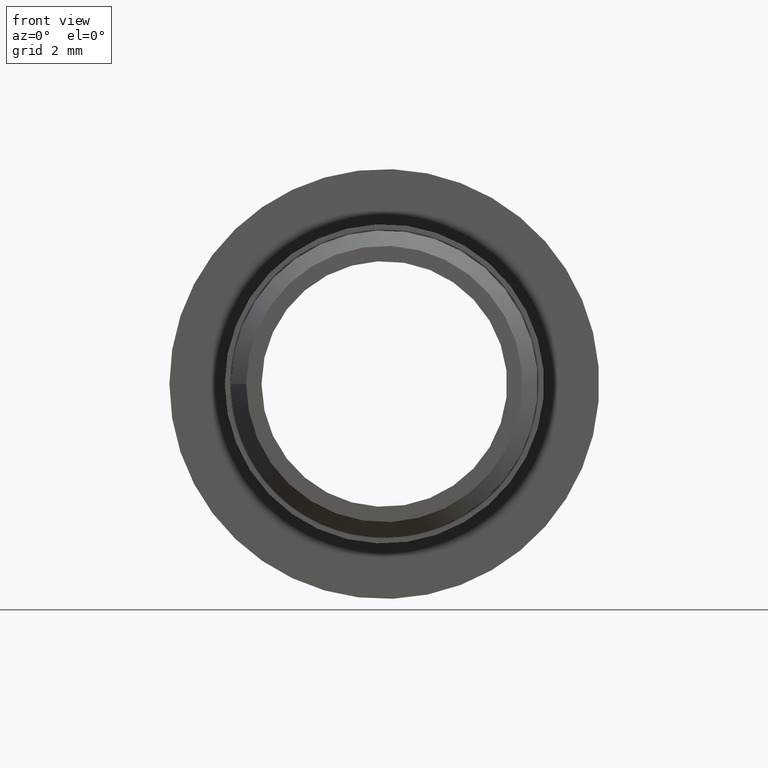
[diagram: clean part render]
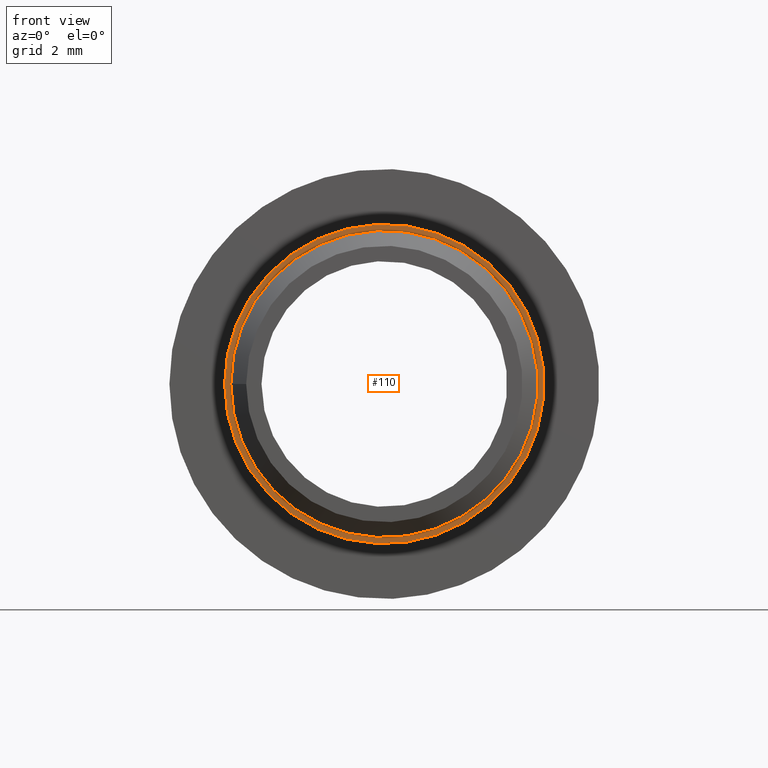
[diagram: same view with one face highlighted and labeled with its STEP entity id]
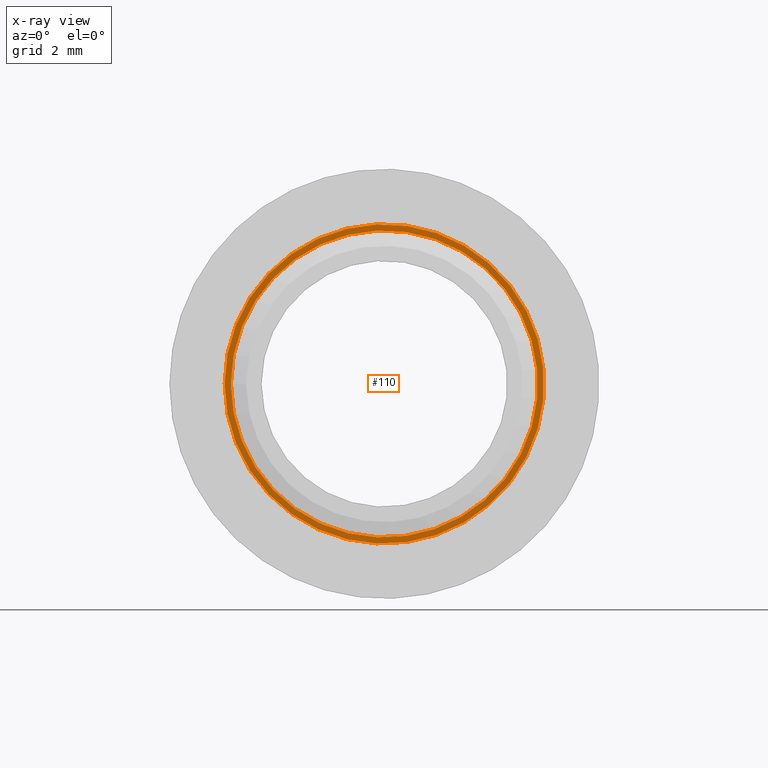
[diagram: x-ray of the same camera — body ghosted, the highlighted face saturated]
A machine part, front view. The second image highlights one B-rep face of the part: STEP entity #110.
The next image is the same camera in x-ray: the body ghosted, the highlighted face saturated — about 0% of this face is hidden behind the body in this view.
In plain terms, the highlighted planar face has unit normal (0, -1, 0).
Its self-contained STEP definition (entity closure, byte-faithful):
#25=FACE_BOUND('',#49,.T.);
#34=FACE_OUTER_BOUND('',#48,.T.);
#48=EDGE_LOOP('',(#93));
#49=EDGE_LOOP('',(#94));
#61=CIRCLE('',#126,5.);
#62=CIRCLE('',#128,5.2);
#70=VERTEX_POINT('',#188);
#71=VERTEX_POINT('',#191);
#79=EDGE_CURVE('',#70,#70,#61,.T.);
#80=EDGE_CURVE('',#71,#71,#62,.T.);
#93=ORIENTED_EDGE('',*,*,#80,.F.);
#94=ORIENTED_EDGE('',*,*,#79,.T.);
#103=PLANE('',#127);
#110=ADVANCED_FACE('',(#34,#25),#103,.T.);
#126=AXIS2_PLACEMENT_3D('',#189,#156,#157);
#127=AXIS2_PLACEMENT_3D('',#190,#158,#159);
#128=AXIS2_PLACEMENT_3D('',#192,#160,#161);
#156=DIRECTION('center_axis',(0.,1.,0.));
#157=DIRECTION('ref_axis',(-1.,0.,0.));
#158=DIRECTION('center_axis',(0.,-1.,0.));
#159=DIRECTION('ref_axis',(0.,0.,-1.));
#160=DIRECTION('center_axis',(0.,1.,0.));
#161=DIRECTION('ref_axis',(-1.,0.,0.));
#188=CARTESIAN_POINT('',(-5.,6.5,0.));
#189=CARTESIAN_POINT('Origin',(0.,6.5,0.));
#190=CARTESIAN_POINT('Origin',(-5.1,6.5,0.));
#191=CARTESIAN_POINT('',(-5.2,6.5,0.));
#192=CARTESIAN_POINT('Origin',(0.,6.5,0.));